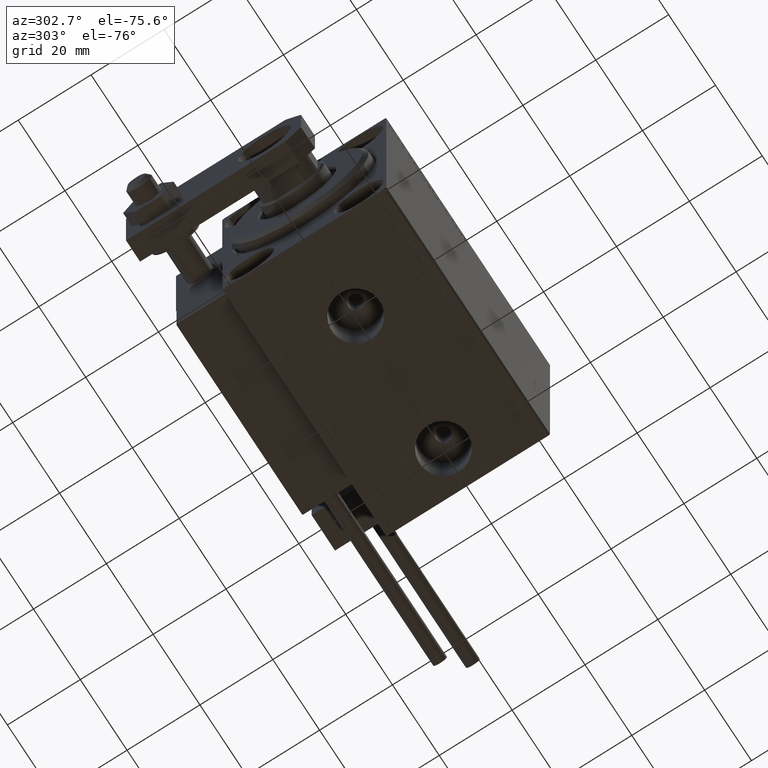
[diagram: clean part render]
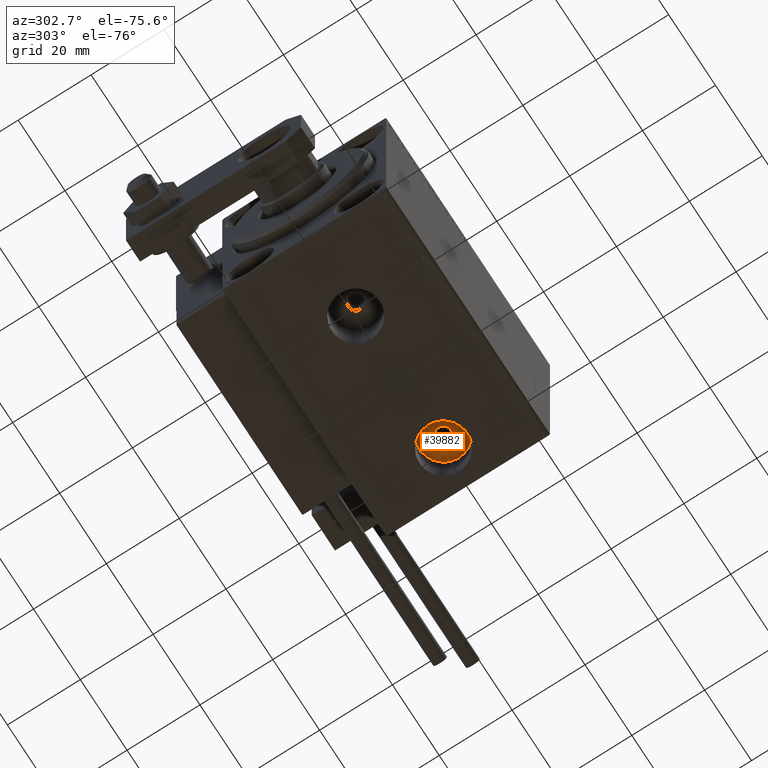
[diagram: same view with one face highlighted and labeled with its STEP entity id]
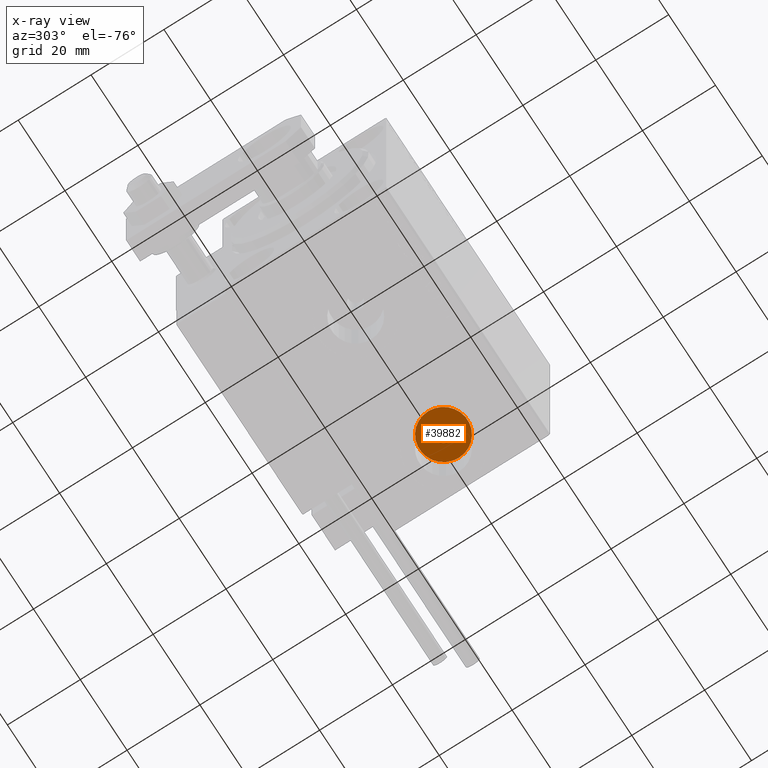
[diagram: x-ray of the same camera — body ghosted, the highlighted face saturated]
A machine part, auxiliary view. The second image highlights one B-rep face of the part: STEP entity #39882.
The next image is the same camera in x-ray: the body ghosted, the highlighted face saturated — about 0% of this face is hidden behind the body in this view.
In plain terms, the highlighted planar face has unit normal (0, 0, -1).
Its self-contained STEP definition (entity closure, byte-faithful):
#574 = CARTESIAN_POINT ( 'NONE',  ( 52.92000000000000171, -6.655964947265702476E-15, -19.50000000000000355 ) ) ;
#1038 = DIRECTION ( 'NONE',  ( -1.000000000000000000, 0.000000000000000000, 0.000000000000000000 ) ) ;
#1167 = EDGE_CURVE ( 'NONE', #18495, #15760, #4905, .T. ) ;
#1190 = EDGE_CURVE ( 'NONE', #44668, #38774, #26881, .T. ) ;
#2015 = ORIENTED_EDGE ( 'NONE', *, *, #40537, .T. ) ;
#2503 = CIRCLE ( 'NONE', #30156, 6.580000000000002736 ) ;
#3881 = CARTESIAN_POINT ( 'NONE',  ( 61.50000000000000711, -6.411035587436231391E-15, -19.50000000000000355 ) ) ;
#4905 = CIRCLE ( 'NONE', #10636, 2.000000000000001776 ) ;
#5317 = FACE_OUTER_BOUND ( 'NONE', #38284, .T. ) ;
#6150 = CARTESIAN_POINT ( 'NONE',  ( 66.07999999999999829, -5.850147353426743435E-15, -19.50000000000000355 ) ) ;
#8625 = PLANE ( 'NONE',  #28506 ) ;
#10636 = AXIS2_PLACEMENT_3D ( 'NONE', #40117, #25371, #40889 ) ;
#14920 = CARTESIAN_POINT ( 'NONE',  ( 59.50000000000000711, -6.655964947265702476E-15, -19.50000000000000355 ) ) ;
#15760 = VERTEX_POINT ( 'NONE', #18841 ) ;
#15905 = DIRECTION ( 'NONE',  ( -1.000000000000000000, 0.000000000000000000, 0.000000000000000000 ) ) ;
#16580 = DIRECTION ( 'NONE',  ( 0.000000000000000000, 0.000000000000000000, -1.000000000000000000 ) ) ;
#17089 = ORIENTED_EDGE ( 'NONE', *, *, #1190, .T. ) ;
#17137 = AXIS2_PLACEMENT_3D ( 'NONE', #14920, #42140, #37588 ) ;
#18495 = VERTEX_POINT ( 'NONE', #3881 ) ;
#18841 = CARTESIAN_POINT ( 'NONE',  ( 57.50000000000000000, -6.655964947265702476E-15, -19.50000000000000355 ) ) ;
#24042 = CARTESIAN_POINT ( 'NONE',  ( 59.50000000000000711, -6.655964947265702476E-15, -19.50000000000000355 ) ) ;
#25371 = DIRECTION ( 'NONE',  ( 0.000000000000000000, 0.000000000000000000, -1.000000000000000000 ) ) ;
#26881 = CIRCLE ( 'NONE', #17137, 6.580000000000002736 ) ;
#27622 = ORIENTED_EDGE ( 'NONE', *, *, #1167, .F. ) ;
#28232 = CARTESIAN_POINT ( 'NONE',  ( 0.000000000000000000, 0.000000000000000000, -19.50000000000000355 ) ) ;
#28506 = AXIS2_PLACEMENT_3D ( 'NONE', #28232, #43245, #32295 ) ;
#28734 = FACE_BOUND ( 'NONE', #43066, .T. ) ;
#30156 = AXIS2_PLACEMENT_3D ( 'NONE', #24042, #42873, #15905 ) ;
#32295 = DIRECTION ( 'NONE',  ( -1.000000000000000000, 0.000000000000000000, -0.000000000000000000 ) ) ;
#37545 = AXIS2_PLACEMENT_3D ( 'NONE', #47082, #16580, #1038 ) ;
#37588 = DIRECTION ( 'NONE',  ( -1.000000000000000000, 0.000000000000000000, 0.000000000000000000 ) ) ;
#37838 = ORIENTED_EDGE ( 'NONE', *, *, #38875, .F. ) ;
#38284 = EDGE_LOOP ( 'NONE', ( #2015, #17089 ) ) ;
#38374 = CIRCLE ( 'NONE', #37545, 2.000000000000001776 ) ;
#38774 = VERTEX_POINT ( 'NONE', #574 ) ;
#38875 = EDGE_CURVE ( 'NONE', #15760, #18495, #38374, .T. ) ;
#39882 = ADVANCED_FACE ( 'NONE', ( #28734, #5317 ), #8625, .T. ) ;
#40117 = CARTESIAN_POINT ( 'NONE',  ( 59.50000000000000711, -6.655964947265702476E-15, -19.50000000000000355 ) ) ;
#40537 = EDGE_CURVE ( 'NONE', #38774, #44668, #2503, .T. ) ;
#40889 = DIRECTION ( 'NONE',  ( -1.000000000000000000, 0.000000000000000000, 0.000000000000000000 ) ) ;
#42140 = DIRECTION ( 'NONE',  ( 0.000000000000000000, 0.000000000000000000, -1.000000000000000000 ) ) ;
#42873 = DIRECTION ( 'NONE',  ( 0.000000000000000000, 0.000000000000000000, -1.000000000000000000 ) ) ;
#43066 = EDGE_LOOP ( 'NONE', ( #37838, #27622 ) ) ;
#43245 = DIRECTION ( 'NONE',  ( 0.000000000000000000, 0.000000000000000000, -1.000000000000000000 ) ) ;
#44668 = VERTEX_POINT ( 'NONE', #6150 ) ;
#47082 = CARTESIAN_POINT ( 'NONE',  ( 59.50000000000000711, -6.655964947265702476E-15, -19.50000000000000355 ) ) ;